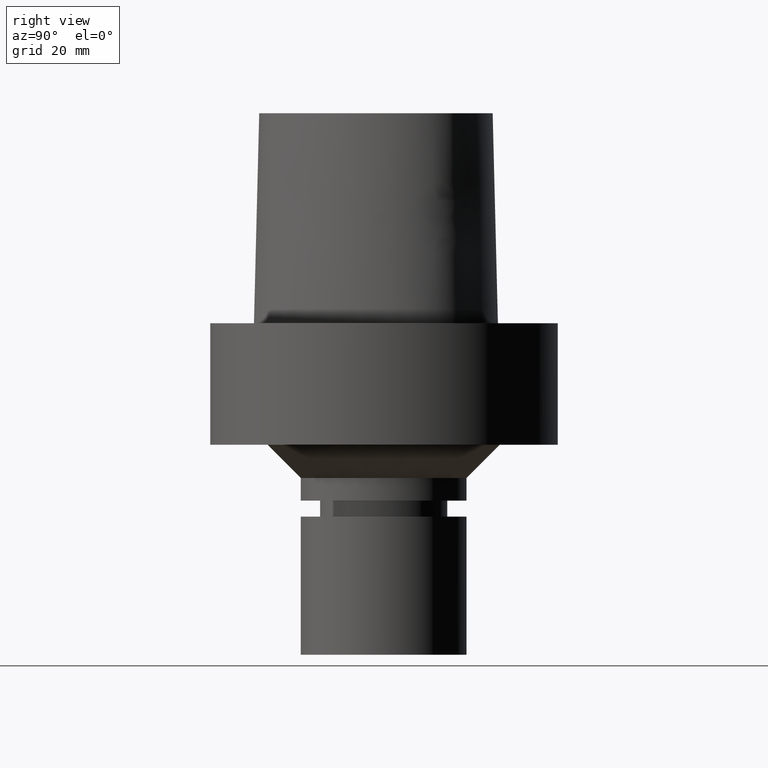
[diagram: clean part render]
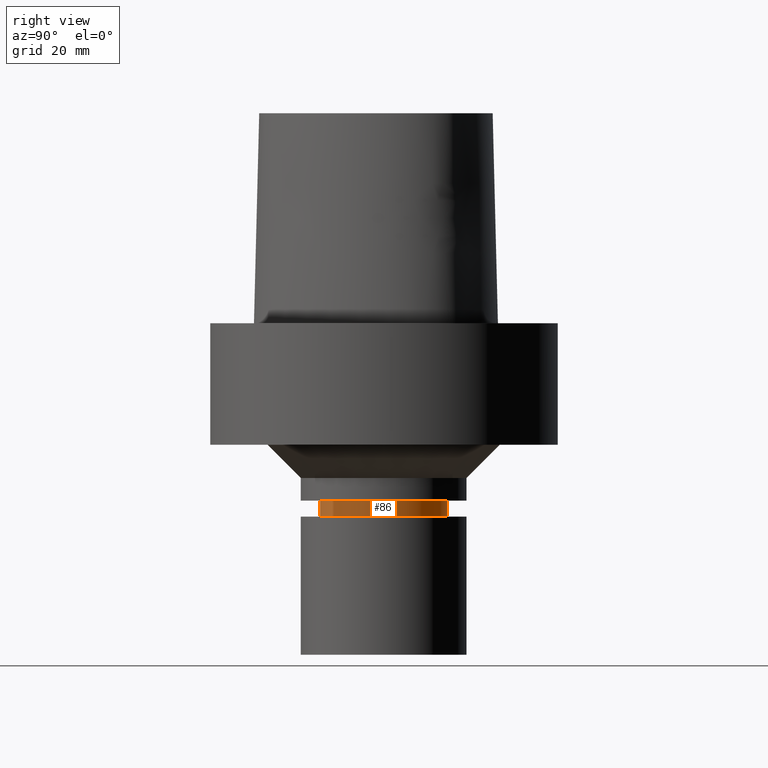
[diagram: same view with one face highlighted and labeled with its STEP entity id]
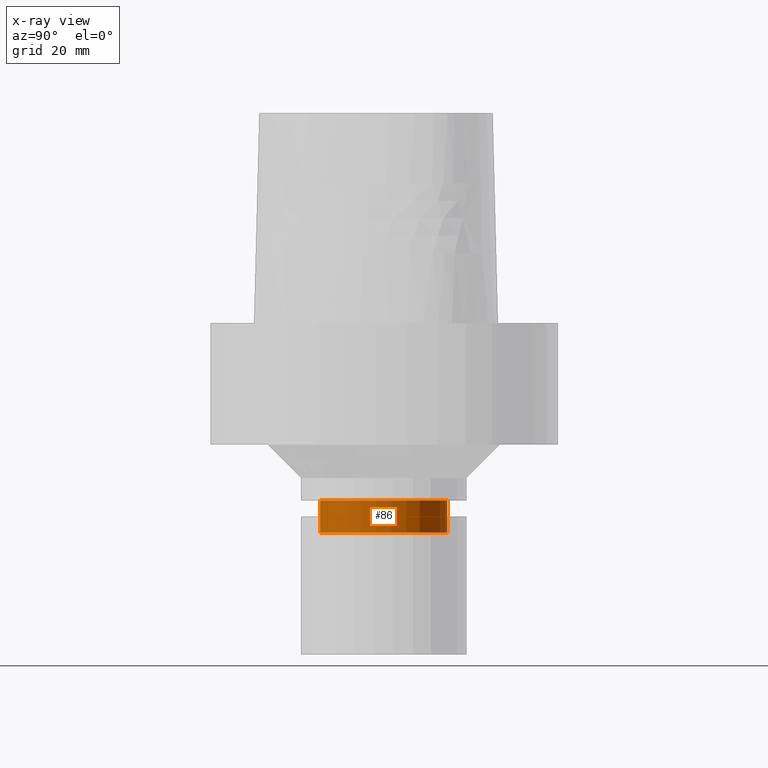
[diagram: x-ray of the same camera — body ghosted, the highlighted face saturated]
A machine part, right view. The second image highlights one B-rep face of the part: STEP entity #86.
The next image is the same camera in x-ray: the body ghosted, the highlighted face saturated — about 0% of this face is hidden behind the body in this view.
In plain terms, the highlighted cylindrical surface (bore or boss wall) has radius 11.5 mm, axis along (0, 0, -1).
Its self-contained STEP definition (entity closure, byte-faithful):
#86=ADVANCED_FACE('Unnamed[1]',(#209,#210),#211,.T.);
#144=EDGE_CURVE('Unnamed[1]',#296,#296,#297,.T.);
#164=EDGE_CURVE('Unnamed[1]',#325,#325,#326,.T.);
#209=FACE_BOUND('',#370,.T.);
#210=FACE_BOUND('',#371,.T.);
#211=CYLINDRICAL_SURFACE('',#372,11.4999999999964);
#296=VERTEX_POINT('',#597);
#297=CIRCLE('',#598,11.5000000000021);
#325=VERTEX_POINT('',#650);
#326=CIRCLE('',#651,11.4999999999907);
#370=EDGE_LOOP('',(#755));
#371=EDGE_LOOP('',(#756));
#372=AXIS2_PLACEMENT_3D('',#757,#758,#759);
#597=CARTESIAN_POINT('',(2.32139913239222E-015,11.5000000000021,-37.9113248653973));
#598=AXIS2_PLACEMENT_3D('',#842,#843,#844);
#650=CARTESIAN_POINT('',(1.96555811963742E-015,11.4999999999907,-32.1000001144153));
#651=AXIS2_PLACEMENT_3D('',#873,#874,#875);
#755=ORIENTED_EDGE('',*,*,#144,.F.);
#756=ORIENTED_EDGE('',*,*,#164,.T.);
#757=CARTESIAN_POINT('',(2.14347862601482E-015,4.28695725202963E-015,-35.0056624899063));
#758=DIRECTION('',(6.12323399573676E-017,1.22464679914735E-016,-1.0));
#759=DIRECTION('',(-1.23259516440783E-032,1.0,1.22464679914735E-016));
#842=CARTESIAN_POINT('',(2.32139913239222E-015,4.64279826478443E-015,-37.9113248653973));
#843=DIRECTION('',(6.12323399573676E-017,1.22464679914735E-016,-1.0));
#844=DIRECTION('',(-1.23259516440783E-032,1.0,1.22464679914735E-016));
#873=CARTESIAN_POINT('',(1.96555811963742E-015,3.93111623927483E-015,-32.1000001144153));
#874=DIRECTION('',(6.12323399573677E-017,1.22464679914735E-016,-1.0));
#875=DIRECTION('',(-1.23259516440783E-032,1.0,1.22464679914735E-016));